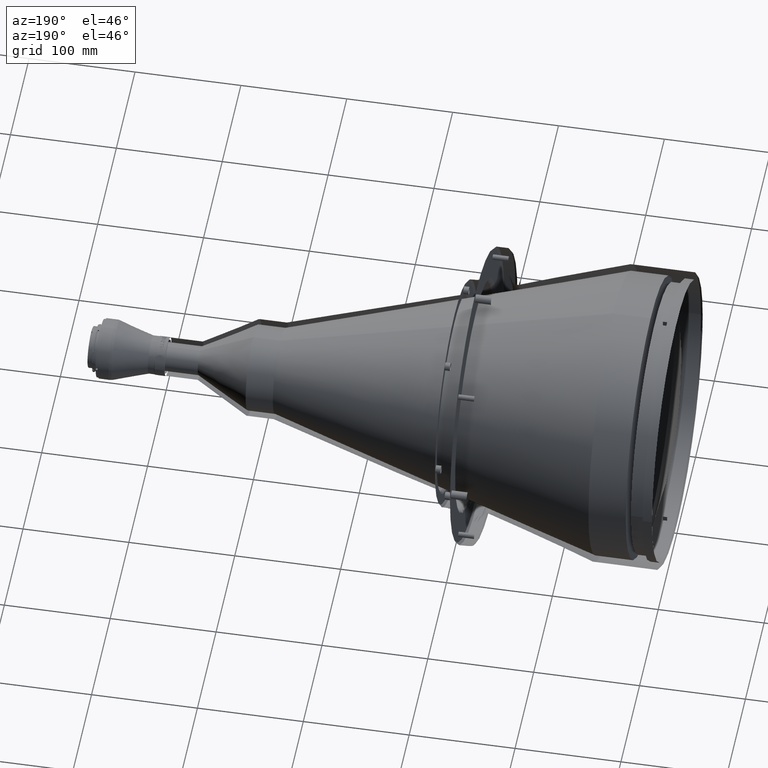
[diagram: clean part render]
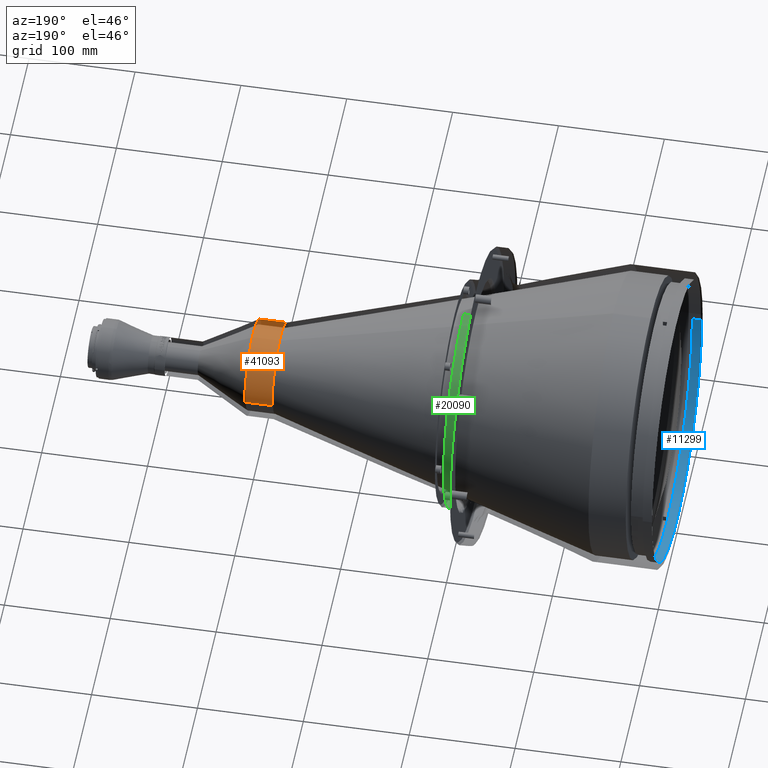
[diagram: same view with three faces highlighted in distinct colors, each labeled with its STEP entity id]
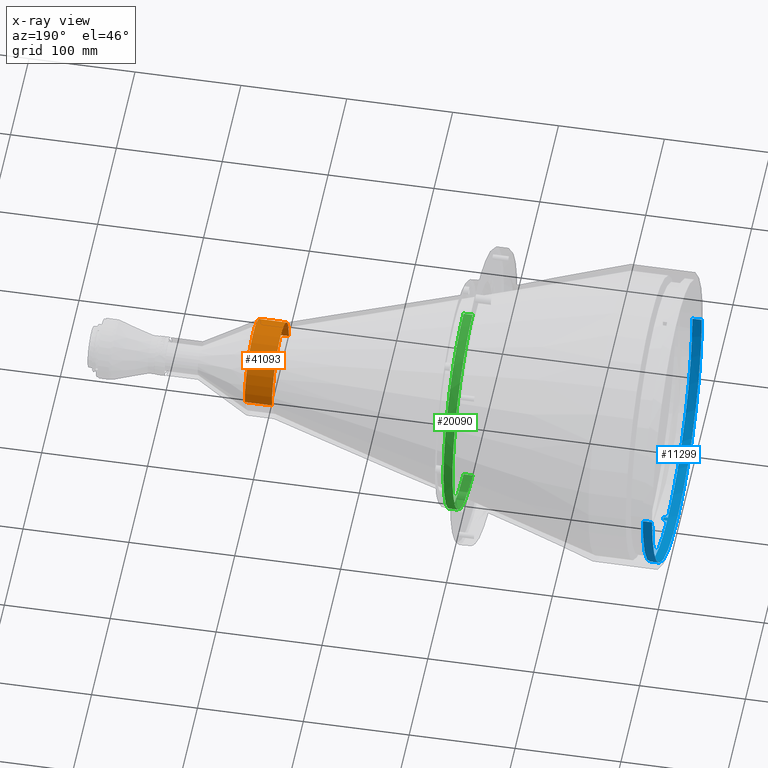
[diagram: x-ray of the same camera — body ghosted, the three highlighted faces saturated]
A machine part, auxiliary view with three faces highlighted in distinct colors.
The next image is the same camera in x-ray (body ghosted, the three faces saturated) — at least one of them is partly hidden behind the body in this view.
Their STEP definitions:

[orange] entity #41093 — the highlighted cylindrical surface (partial cylindrical patch) has radius 45.5 mm, axis along (1, 0, 0).
#165 = ORIENTED_EDGE ( 'NONE', *, *, #25155, .F. ) ;
#765 = CARTESIAN_POINT ( 'NONE',  ( 400.1999999890540494, -45.50000000602031491, 2.768180388105965672 ) ) ;
#777 = CARTESIAN_POINT ( 'NONE',  ( 374.5000000252640007, 42.92781545998033010, 15.33347587772701637 ) ) ;
#1323 = CARTESIAN_POINT ( 'NONE',  ( 374.5000000252640575, 8.770657782889619725, 44.73240866211475009 ) ) ;
#1851 = VERTEX_POINT ( 'NONE', #22315 ) ;
#1867 = CARTESIAN_POINT ( 'NONE',  ( 400.1999999889765149, 6.027860504608212544, 45.18382145137578476 ) ) ;
#2676 = CARTESIAN_POINT ( 'NONE',  ( 400.1999999889394530, 36.36826625420102488, 27.48203109084616713 ) ) ;
#2711 = VECTOR ( 'NONE', #12814, 1000.000000000000000 ) ;
#3556 = CARTESIAN_POINT ( 'NONE',  ( 374.5000000252641144, -45.24668051948123093, 5.536309657801396611 ) ) ;
#4039 = EDGE_CURVE ( 'NONE', #23309, #14631, #31465, .T. ) ;
#4384 = CARTESIAN_POINT ( 'NONE',  ( 374.5000000252641144, -25.64253252426647833, 37.68784085618300850 ) ) ;
#4656 = CARTESIAN_POINT ( 'NONE',  ( 400.1999999890453523, -44.24179937639248550, 10.98071086717121858 ) ) ;
#4936 = FACE_OUTER_BOUND ( 'NONE', #42345, .T. ) ;
#4940 = CARTESIAN_POINT ( 'NONE',  ( 374.5000000252640575, 16.74416422598858389, 42.39747382842657686 ) ) ;
#5222 = CARTESIAN_POINT ( 'NONE',  ( 374.5000000252640575, 24.16142581298923986, 38.65408549354648216 ) ) ;
#5392 = CARTESIAN_POINT ( 'NONE',  ( 374.5000000252640007, 45.12705905806026152, 6.713070853055089771 ) ) ;
#5545 = ORIENTED_EDGE ( 'NONE', *, *, #4039, .T. ) ;
#5755 = CARTESIAN_POINT ( 'NONE',  ( 400.1999999889823698, 0.5057881394849146339, 45.58132294669047013 ) ) ;
#5941 = VERTEX_POINT ( 'NONE', #45672 ) ;
#6031 = CARTESIAN_POINT ( 'NONE',  ( 400.1999999889737865, 8.770657784050474248, 44.73240866807913108 ) ) ;
#6108 = ORIENTED_EDGE ( 'NONE', *, *, #6875, .T. ) ;
#6849 = CARTESIAN_POINT ( 'NONE',  ( 400.1999999889937385, -10.49910809998909222, 44.35855669785371447 ) ) ;
#6875 = EDGE_CURVE ( 'NONE', #14631, #27368, #13215, .T. ) ;
#9694 = CARTESIAN_POINT ( 'NONE',  ( 374.5000000252640575, 14.12885911669510541, 43.33922199024314637 ) ) ;
#9975 = CARTESIAN_POINT ( 'NONE',  ( 374.5000000252640575, -2.273384974381213119, 45.52740431231799789 ) ) ;
#9995 = CARTESIAN_POINT ( 'NONE',  ( 400.1999999890144295, 45.12705906405366818, 6.713070853952771699 ) ) ;
#10240 = CARTESIAN_POINT ( 'NONE',  ( 374.5000000252641712, -18.37604851888064417, 41.71610796192253900 ) ) ;
#10496 = CARTESIAN_POINT ( 'NONE',  ( 400.1999999890024355, -18.37604852132858113, 41.71610796746631422 ) ) ;
#10970 = CARTESIAN_POINT ( 'NONE',  ( 387.3500000000000227, 45.49999999999881339, -7.662641651213079599E-14 ) ) ;
#11306 = CARTESIAN_POINT ( 'NONE',  ( 400.1999999889908963, -7.775883899457439519, 44.91601554895829196 ) ) ;
#12479 = CARTESIAN_POINT ( 'NONE',  ( 374.5000000252680366, -45.49999999636539627, 4.112648967899065080E-15 ) ) ;
#12755 = CARTESIAN_POINT ( 'NONE',  ( 374.5000000252641144, -35.74948372605202707, 28.28227777212780936 ) ) ;
#12814 = DIRECTION ( 'NONE',  ( 1.000000000000000000, 0.000000000000000000, 0.000000000000000000 ) ) ;
#13023 = EDGE_CURVE ( 'NONE', #5941, #1851, #15320, .T. ) ;
#13215 = B_SPLINE_CURVE_WITH_KNOTS ( 'NONE', 3,
 ( #22378, #5392, #39341, #18193 ),
 .UNSPECIFIED., .F., .F.,
 ( 4, 4 ),
 ( 0.000000000000000000, 1.000000000000000000 ),
 .UNSPECIFIED. ) ;
#13296 = CARTESIAN_POINT ( 'NONE',  ( 387.3500000000000227, -5.861977570020829563E-13, -3.552713678800519231E-14 ) ) ;
#13852 = CARTESIAN_POINT ( 'NONE',  ( 400.1999999890109621, -25.64253252767650793, 37.68784086118691334 ) ) ;
#14134 = CARTESIAN_POINT ( 'NONE',  ( 374.5000000252640575, -15.79923934537011831, 42.75858812878109205 ) ) ;
#14631 = VERTEX_POINT ( 'NONE', #36440 ) ;
#14926 = CARTESIAN_POINT ( 'NONE',  ( 400.1999999889251285, 42.92781546572345519, 15.33347587979341498 ) ) ;
#15320 = B_SPLINE_CURVE_WITH_KNOTS ( 'NONE', 3,
 ( #48378, #9995, #26951, #39732 ),
 .UNSPECIFIED., .F., .F.,
 ( 4, 4 ),
 ( 0.000000000000000000, 1.000000000000000000 ),
 .UNSPECIFIED. ) ;
#15471 = CARTESIAN_POINT ( 'NONE',  ( 400.1999999890082904, -23.29774055381970399, 39.18071092129579824 ) ) ;
#16635 = CARTESIAN_POINT ( 'NONE',  ( 374.5000000252640007, -41.51387633556240786, 18.82845968885110111 ) ) ;
#17330 = ORIENTED_EDGE ( 'NONE', *, *, #20755, .T. ) ;
#17461 = CARTESIAN_POINT ( 'NONE',  ( 400.1999999890367690, -41.51387634106474422, 18.82845969134458741 ) ) ;
#17824 = CARTESIAN_POINT ( 'NONE',  ( 374.5000000252680366, -45.49999999636539627, 4.112648967899065080E-15 ) ) ;
#18066 = VECTOR ( 'NONE', #44644, 1000.000000000000000 ) ;
#18193 = CARTESIAN_POINT ( 'NONE',  ( 374.5000000253049848, 45.49999999770999892, -6.388107833258559711E-14 ) ) ;
#19126 = ORIENTED_EDGE ( 'NONE', *, *, #44517, .F. ) ;
#20755 = EDGE_CURVE ( 'NONE', #27368, #1851, #33667, .T. ) ;
#21372 = CARTESIAN_POINT ( 'NONE',  ( 374.5000000252640007, -23.29774055071989380, 39.18071091609211010 ) ) ;
#21638 = CARTESIAN_POINT ( 'NONE',  ( 400.1999999890424533, -43.49025626416808876, 13.65688226816456030 ) ) ;
#21648 = CARTESIAN_POINT ( 'NONE',  ( 374.5000000252640575, 0.5057881394250450802, 45.58132294061929457 ) ) ;
#21915 = DIRECTION ( 'NONE',  ( 1.000000000000000000, 0.000000000000000000, 0.000000000000000000 ) ) ;
#22315 = CARTESIAN_POINT ( 'NONE',  ( 400.1999999882374368, 45.50000000197839256, -3.264780185757434716E-14 ) ) ;
#22378 = CARTESIAN_POINT ( 'NONE',  ( 374.5000000253819508, 44.39024389797739900, 9.987804877029621053 ) ) ;
#22753 = CARTESIAN_POINT ( 'NONE',  ( 374.5000000252640575, 40.75233114707592108, 20.42450314543855328 ) ) ;
#23309 = VERTEX_POINT ( 'NONE', #17824 ) ;
#24991 = CARTESIAN_POINT ( 'NONE',  ( 374.5000000252640575, -43.49025625840722853, 13.65688226635693248 ) ) ;
#25155 = EDGE_CURVE ( 'NONE', #23309, #40024, #27422, .T. ) ;
#25822 = CARTESIAN_POINT ( 'NONE',  ( 400.1999999884124009, -45.50000000300936875, -2.475475193136962644E-14 ) ) ;
#26105 = CARTESIAN_POINT ( 'NONE',  ( 374.5000000252641144, 30.77603946587455042, 33.62659984973069527 ) ) ;
#26334 = ORIENTED_EDGE ( 'NONE', *, *, #13023, .F. ) ;
#26376 = CARTESIAN_POINT ( 'NONE',  ( 400.1999999890195454, -32.05716590574788682, 32.40757530735709935 ) ) ;
#26661 = CARTESIAN_POINT ( 'NONE',  ( 374.5000000252639438, 39.43166609608137207, 22.87042919461969959 ) ) ;
#26951 = CARTESIAN_POINT ( 'NONE',  ( 400.1999999891095285, 45.50000000598972605, 3.356602376046171177 ) ) ;
#27197 = CARTESIAN_POINT ( 'NONE',  ( 400.1999999889592914, 21.76049389321947203, 40.05488395610253605 ) ) ;
#27208 = CARTESIAN_POINT ( 'NONE',  ( 374.5000000252640575, 6.027860503812973114, 45.18382144535338085 ) ) ;
#27368 = VERTEX_POINT ( 'NONE', #39973 ) ;
#27422 = LINE ( 'NONE', #41751, #18066 ) ;
#28004 = CARTESIAN_POINT ( 'NONE',  ( 400.1999999889481501, 30.77603946997831841, 33.62659985423145059 ) ) ;
#29450 = CARTESIAN_POINT ( 'NONE',  ( 374.5000000252640007, -40.28907602100392893, 21.32377021149927998 ) ) ;
#29725 = CARTESIAN_POINT ( 'NONE',  ( 374.5000000252641144, -32.05716590149026501, 32.40757530305804579 ) ) ;
#30273 = CARTESIAN_POINT ( 'NONE',  ( 400.1999999890253434, -35.74948373079655539, 28.28227777587747482 ) ) ;
#31465 = B_SPLINE_CURVE_WITH_KNOTS ( 'NONE', 3,
 ( #12479, #50881, #3556, #54763, #24991, #16635, #29450, #46421, #12755, #29725, #46699, #4384, #21372, #10240, #14134, #43336, #34997, #9975, #21648, #27208, #1323, #9694, #4940, #38886, #5222, #51711, #26105, #39176, #43888, #26661, #22753, #777, #44153, #52262 ),
 .UNSPECIFIED., .F., .F.,
 ( 4, 2, 2, 2, 2, 2, 2, 2, 2, 2, 2, 2, 2, 2, 2, 2, 4 ),
 ( 0.000000000000000000, 0.06250000000000001388, 0.1250000000000000000, 0.1874999999999999722, 0.2499999999999999722, 0.3124999999999999445, 0.3749999999999999445, 0.4375000000000000000, 0.5000000000000000000, 0.5625000000000000000, 0.6250000000000000000, 0.6875000000000000000, 0.7500000000000000000, 0.8125000000000001110, 0.8750000000000001110, 0.9375000000000001110, 1.000000000000000000 ),
 .UNSPECIFIED. ) ;
#31623 = CARTESIAN_POINT ( 'NONE',  ( 400.1999999889651463, 16.74416422821360584, 42.39747383408602843 ) ) ;
#32172 = CARTESIAN_POINT ( 'NONE',  ( 400.1999999889681021, 14.12885911857084764, 43.33922199602607606 ) ) ;
#32583 = B_SPLINE_CURVE_WITH_KNOTS ( 'NONE', 3,
 ( #25822, #765, #42778, #4656, #21638, #17461, #34426, #51422, #30273, #26376, #51967, #13852, #15471, #10496, #36332, #6849, #11306, #43878, #5755, #1867, #6031, #32172, #31623, #27197, #53050, #44144, #28004, #36071, #2676, #53324, #49158, #14926, #49426, #44416 ),
 .UNSPECIFIED., .F., .F.,
 ( 4, 2, 2, 2, 2, 2, 2, 2, 2, 2, 2, 2, 2, 2, 2, 2, 4 ),
 ( 0.5182546318853273881, 0.5483637173924944541, 0.5784728028996614091, 0.6085818884068284751, 0.6386909739139955411, 0.6688000594211624961, 0.6989091449283295621, 0.7290182304354966281, 0.7591273159426636941, 0.7892364014498307601, 0.8193454869569977150, 0.8494545724641647810, 0.8795636579713317360, 0.9096727434784988020, 0.9397818289856658680, 0.9698909144928329340, 1.000000000000000000 ),
 .UNSPECIFIED. ) ;
#33324 = CYLINDRICAL_SURFACE ( 'NONE', #46786, 45.49999999999939604 ) ;
#33667 = LINE ( 'NONE', #10970, #2711 ) ;
#34426 = CARTESIAN_POINT ( 'NONE',  ( 400.1999999890338131, -40.28907602634559737, 21.32377021432403907 ) ) ;
#34997 = CARTESIAN_POINT ( 'NONE',  ( 374.5000000252640575, -7.775883898416093842, 44.91601554298168253 ) ) ;
#36071 = CARTESIAN_POINT ( 'NONE',  ( 400.1999999889422384, 34.62558802747508224, 29.64762177588823278 ) ) ;
#36332 = CARTESIAN_POINT ( 'NONE',  ( 400.1999999889995934, -15.79923934747641567, 42.75858813446517814 ) ) ;
#36440 = CARTESIAN_POINT ( 'NONE',  ( 374.5000000253819508, 44.39024389797739900, 9.987804877029621053 ) ) ;
#38886 = CARTESIAN_POINT ( 'NONE',  ( 374.5000000252640575, 21.76049389032380788, 40.05488395075144581 ) ) ;
#39176 = CARTESIAN_POINT ( 'NONE',  ( 374.5000000252640007, 34.62558802285399651, 29.64762177191556702 ) ) ;
#39341 = CARTESIAN_POINT ( 'NONE',  ( 374.5000000252640007, 45.49999999999880629, 3.356602375603122468 ) ) ;
#39357 = CARTESIAN_POINT ( 'NONE',  ( 400.1999999884124009, -45.50000000300936875, -2.475475193136962644E-14 ) ) ;
#39732 = CARTESIAN_POINT ( 'NONE',  ( 400.1999999882374368, 45.50000000197839256, -3.264780185757434716E-14 ) ) ;
#39973 = CARTESIAN_POINT ( 'NONE',  ( 374.5000000253049848, 45.49999999770999892, -6.388107833258559711E-14 ) ) ;
#40024 = VERTEX_POINT ( 'NONE', #39357 ) ;
#41093 = ADVANCED_FACE ( 'NONE', ( #4936 ), #33324, .F. ) ;
#41751 = CARTESIAN_POINT ( 'NONE',  ( 387.3500000000000227, -45.49999999999997868, 1.232595164407830946E-29 ) ) ;
#41943 = DIRECTION ( 'NONE',  ( 0.000000000000000000, -1.000000000000000000, 7.808161931429819168E-16 ) ) ;
#42345 = EDGE_LOOP ( 'NONE', ( #6108, #17330, #26334, #19126, #165, #5545 ) ) ;
#42778 = CARTESIAN_POINT ( 'NONE',  ( 400.1999999890511504, -45.24668052546967090, 5.536309658533648204 ) ) ;
#43336 = CARTESIAN_POINT ( 'NONE',  ( 374.5000000252642280, -10.49910809858608296, 44.35855669195321838 ) ) ;
#43878 = CARTESIAN_POINT ( 'NONE',  ( 400.1999999889851551, -2.273384974691113225, 45.52740431837992219 ) ) ;
#43888 = CARTESIAN_POINT ( 'NONE',  ( 374.5000000252640575, 36.36826624934533214, 27.48203108716128540 ) ) ;
#44144 = CARTESIAN_POINT ( 'NONE',  ( 400.1999999889510491, 28.66924022561025609, 35.43991377106280538 ) ) ;
#44153 = CARTESIAN_POINT ( 'NONE',  ( 374.5000000252639438, 43.78259454903567871, 12.68846867095132325 ) ) ;
#44416 = CARTESIAN_POINT ( 'NONE',  ( 400.1999999882019665, 44.39024390658385499, 9.987804878981270562 ) ) ;
#44517 = EDGE_CURVE ( 'NONE', #40024, #5941, #32583, .T. ) ;
#44644 = DIRECTION ( 'NONE',  ( 1.000000000000000000, 0.000000000000000000, 0.000000000000000000 ) ) ;
#45672 = CARTESIAN_POINT ( 'NONE',  ( 400.1999999882019665, 44.39024390658385499, 9.987804878981270562 ) ) ;
#46421 = CARTESIAN_POINT ( 'NONE',  ( 374.5000000252641144, -37.40685310444531098, 26.05072289748417802 ) ) ;
#46699 = CARTESIAN_POINT ( 'NONE',  ( 374.5000000252640007, -30.02228563827569729, 34.30124178091559628 ) ) ;
#46786 = AXIS2_PLACEMENT_3D ( 'NONE', #13296, #21915, #41943 ) ;
#48378 = CARTESIAN_POINT ( 'NONE',  ( 400.1999999882019665, 44.39024390658385499, 9.987804878981270562 ) ) ;
#49158 = CARTESIAN_POINT ( 'NONE',  ( 400.1999999889309265, 40.75233115252365224, 20.42450314818392343 ) ) ;
#49426 = CARTESIAN_POINT ( 'NONE',  ( 400.1999999889224000, 43.78259455489548913, 12.68846867266464606 ) ) ;
#50881 = CARTESIAN_POINT ( 'NONE',  ( 374.5000000252640007, -45.49999999999997868, 2.768180387739902493 ) ) ;
#51422 = CARTESIAN_POINT ( 'NONE',  ( 400.1999999890281856, -37.40685310940804698, 26.05072290093702136 ) ) ;
#51711 = CARTESIAN_POINT ( 'NONE',  ( 374.5000000252640575, 28.66924022178922726, 35.43991376632173740 ) ) ;
#51967 = CARTESIAN_POINT ( 'NONE',  ( 400.1999999890166464, -30.02228564226465934, 34.30124178546719094 ) ) ;
#52262 = CARTESIAN_POINT ( 'NONE',  ( 374.5000000253819508, 44.39024389797739900, 9.987804877029621053 ) ) ;
#53050 = CARTESIAN_POINT ( 'NONE',  ( 400.1999999889566197, 24.16142581620619012, 38.65408549871273181 ) ) ;
#53324 = CARTESIAN_POINT ( 'NONE',  ( 400.1999999889336550, 39.43166610135038042, 22.87042919769093174 ) ) ;
#54763 = CARTESIAN_POINT ( 'NONE',  ( 374.5000000252640007, -44.24179937053378353, 10.98071086571817112 ) ) ;

[blue] entity #11299 — the highlighted cylindrical surface (partial cylindrical patch) has radius 132.9 mm, axis along (1, 0, 0).
#205 = CARTESIAN_POINT ( 'NONE',  ( -0.000000000000000000, -128.4407857921244158, -34.41397399465732576 ) ) ;
#480 = CARTESIAN_POINT ( 'NONE',  ( 0.000000000000000000, -108.0843036058042230, -77.45405605940683813 ) ) ;
#1042 = CARTESIAN_POINT ( 'NONE',  ( -0.000000000000000000, -112.9203193441570079, -70.21651187728615184 ) ) ;
#1314 = CARTESIAN_POINT ( 'NONE',  ( 0.000000000000000000, -129.4972599107605333, -30.19614481316151711 ) ) ;
#2108 = B_SPLINE_CURVE_WITH_KNOTS ( 'NONE', 3,
 ( #11908, #24981, #54470, #46412, #8286, #28602, #21079, #25251, #41652, #3270, #41936, #20255, #4094, #3818, #33885, #38040, #16908, #37760, #42485, #16342, #50029, #8565, #54749, #36937, #15801, #32768, #11643, #37211, #45570, #16625, #7449, #45846, #24417, #16081, #28872, #33317, #33592, #50581, #9965, #39429, #5487, #4375, #9405, #34712, #22469, #43050, #14126, #35265, #5212, #46964, #17741, #8844, #480, #1042, #51698, #21361, #26923, #38331, #13578, #205, #1314, #4932, #22193, #51149, #17190, #26096 ),
 .UNSPECIFIED., .F., .F.,
 ( 4, 2, 2, 2, 2, 2, 2, 2, 2, 2, 2, 2, 2, 2, 2, 2, 2, 2, 2, 2, 2, 2, 2, 2, 2, 2, 2, 2, 2, 2, 2, 2, 4 ),
 ( 0.5000000000000000000, 0.5156250000000000000, 0.5312500000000000000, 0.5468750000000000000, 0.5625000000000000000, 0.5781250000000000000, 0.5937500000000000000, 0.6093750000000000000, 0.6250000000000000000, 0.6406250000000000000, 0.6562500000000000000, 0.6718750000000000000, 0.6875000000000000000, 0.7031250000000000000, 0.7187500000000000000, 0.7343750000000000000, 0.7500000000000000000, 0.7656250000000000000, 0.7812500000000000000, 0.7968750000000000000, 0.8125000000000000000, 0.8281250000000000000, 0.8437500000000000000, 0.8593750000000000000, 0.8750000000000000000, 0.8906250000000000000, 0.9062500000000000000, 0.9218750000000000000, 0.9375000000000000000, 0.9531250000000000000, 0.9687500000000000000, 0.9843750000000000000, 1.000000000000000000 ),
 .UNSPECIFIED. ) ;
#3270 = CARTESIAN_POINT ( 'NONE',  ( -0.000000000000000000, 121.1180497700383398, -54.87964044958533805 ) ) ;
#3746 = B_SPLINE_CURVE_WITH_KNOTS ( 'NONE', 3,
 ( #22371, #40153, #22087, #22642 ),
 .UNSPECIFIED., .F., .F.,
 ( 4, 4 ),
 ( 0.000000000000000000, 1.000000000000000000 ),
 .UNSPECIFIED. ) ;
#3818 = CARTESIAN_POINT ( 'NONE',  ( -0.000000000000000000, 108.0843136771519966, -77.45410287965366081 ) ) ;
#4094 = CARTESIAN_POINT ( 'NONE',  ( 0.000000000000000000, 112.9203092729199938, -70.21646505687435535 ) ) ;
#4355 = CARTESIAN_POINT ( 'NONE',  ( 11.50282277828946498, -1.999999999983595123, -132.8849502389188615 ) ) ;
#4375 = CARTESIAN_POINT ( 'NONE',  ( -0.000000000000000000, -54.87961028275992703, -121.1180640374938520 ) ) ;
#4932 = CARTESIAN_POINT ( 'NONE',  ( -0.000000000000000000, -131.1954676203986594, -21.65886277882350797 ) ) ;
#5089 = CARTESIAN_POINT ( 'NONE',  ( 8.836156110278034603, -132.9000000000000057, -8.614948180564132585 ) ) ;
#5212 = CARTESIAN_POINT ( 'NONE',  ( 0.000000000000000000, -90.89695728064278057, -97.05199968645221986 ) ) ;
#5368 = CARTESIAN_POINT ( 'NONE',  ( 8.836156105587644305, -81.98911147529348398, -104.9495732799595373 ) ) ;
#5487 = CARTESIAN_POINT ( 'NONE',  ( 0.000000000000000000, -46.83764603978926999, -124.4491157040451554 ) ) ;
#5912 = CARTESIAN_POINT ( 'NONE',  ( 8.836156107752444200, -115.6629505439514816, -66.02052107959445948 ) ) ;
#6218 = CARTESIAN_POINT ( 'NONE',  ( 8.836156109394000424, 1.999999999970874853, -132.8849502392509692 ) ) ;
#6543 = EDGE_CURVE ( 'NONE', #50694, #16216, #12721, .T. ) ;
#7047 = VERTEX_POINT ( 'NONE', #14298 ) ;
#7449 = CARTESIAN_POINT ( 'NONE',  ( 0.000000000000000000, 17.35779102699665444, -131.8334349726115136 ) ) ;
#8286 = CARTESIAN_POINT ( 'NONE',  ( 0.000000000000000000, 131.1954403983689872, -21.65882337635200727 ) ) ;
#8551 = CARTESIAN_POINT ( 'NONE',  ( 8.836156106079540606, 128.7301123782984575, -34.13481359586734243 ) ) ;
#8565 = CARTESIAN_POINT ( 'NONE',  ( -0.000000000000000000, 70.21651187734080679, -112.9203193441026798 ) ) ;
#8844 = CARTESIAN_POINT ( 'NONE',  ( -0.000000000000000000, -105.4941554443851146, -80.94652696731969854 ) ) ;
#9140 = CYLINDRICAL_SURFACE ( 'NONE', #16952, 132.8999999999999773 ) ;
#9405 = CARTESIAN_POINT ( 'NONE',  ( 0.000000000000000000, -58.81025641100195855, -119.2589670712533945 ) ) ;
#9700 = DIRECTION ( 'NONE',  ( 0.000000000000000000, 1.000000000000000000, -3.608851366727370312E-15 ) ) ;
#9880 = CARTESIAN_POINT ( 'NONE',  ( 8.836156109949762083, 132.8999999999999773, 2.757665262809183870E-10 ) ) ;
#9965 = CARTESIAN_POINT ( 'NONE',  ( 0.000000000000000000, -34.41396353490189597, -128.4407513207275713 ) ) ;
#10146 = CARTESIAN_POINT ( 'NONE',  ( 8.836156102799616718, 36.06819586819657530, -128.2018431184485507 ) ) ;
#10160 = B_SPLINE_CURVE_WITH_KNOTS ( 'NONE', 3,
 ( #16790, #33760, #41822, #20687, #14546, #51855, #30978, #5368, #14280, #52408, #13464, #5912, #48234, #47687, #43210, #14006, #5089, #44031 ),
 .UNSPECIFIED., .F., .F.,
 ( 4, 2, 2, 2, 2, 2, 2, 2, 4 ),
 ( 0.000000000000000000, 0.1250000000000000555, 0.2500000000000000555, 0.3750000000000000555, 0.5000000000000000000, 0.6250000000000000000, 0.7500000000000001110, 0.8750000000000000000, 1.000000000000000000 ),
 .UNSPECIFIED. ) ;
#10743 = VECTOR ( 'NONE', #24395, 1000.000000000000000 ) ;
#11299 = ADVANCED_FACE ( 'NONE', ( #34173 ), #9140, .T. ) ;
#11643 = CARTESIAN_POINT ( 'NONE',  ( 0.000000000000000000, 42.74369321880987371, -125.9139554456454846 ) ) ;
#11908 = CARTESIAN_POINT ( 'NONE',  ( -1.697925220561780080E-09, 132.8999999999999488, 5.000553336126151999E-11 ) ) ;
#12721 = LINE ( 'NONE', #29125, #10743 ) ;
#12733 = CARTESIAN_POINT ( 'NONE',  ( 8.836156104849571591, 106.1715353337880572, -80.40045035334136969 ) ) ;
#13143 = ORIENTED_EDGE ( 'NONE', *, *, #46324, .T. ) ;
#13464 = CARTESIAN_POINT ( 'NONE',  ( 8.836156107030845419, -106.1715353336902581, -80.40045035346938107 ) ) ;
#13578 = CARTESIAN_POINT ( 'NONE',  ( 0.000000000000000000, -125.9139554454676073, -42.74369321967464685 ) ) ;
#13762 = ORIENTED_EDGE ( 'NONE', *, *, #27632, .T. ) ;
#14006 = CARTESIAN_POINT ( 'NONE',  ( 8.836156109917238766, -132.0597026617961944, -17.22969137946966711 ) ) ;
#14126 = CARTESIAN_POINT ( 'NONE',  ( 0.000000000000000000, -80.94650411467932827, -105.4941275977285073 ) ) ;
#14212 = CARTESIAN_POINT ( 'NONE',  ( 8.836156109394000424, 1.999999999970874853, -132.8849502392509692 ) ) ;
#14280 = CARTESIAN_POINT ( 'NONE',  ( 8.836156105948445472, -88.63327964624380684, -99.40205768144062404 ) ) ;
#14298 = CARTESIAN_POINT ( 'NONE',  ( -1.697925220561780080E-09, 132.8999999999999488, 5.000553336126151999E-11 ) ) ;
#14308 = CARTESIAN_POINT ( 'NONE',  ( 8.836156105874549027, 126.2408986562919893, -42.42479037786484497 ) ) ;
#14546 = CARTESIAN_POINT ( 'NONE',  ( 8.836156103783647353, -44.31977393219790429, -125.5881561722782322 ) ) ;
#15575 = CARTESIAN_POINT ( 'NONE',  ( 8.836156111425889748, -132.8999999999999773, 3.355684008828114756E-13 ) ) ;
#15801 = CARTESIAN_POINT ( 'NONE',  ( 0.000000000000000000, 54.87959649419052255, -121.1180307577402431 ) ) ;
#16081 = CARTESIAN_POINT ( 'NONE',  ( -0.000000000000000000, -4.352272221947830033, -132.9000180116928789 ) ) ;
#16216 = VERTEX_POINT ( 'NONE', #15575 ) ;
#16318 = ORIENTED_EDGE ( 'NONE', *, *, #29067, .T. ) ;
#16342 = CARTESIAN_POINT ( 'NONE',  ( -0.000000000000000000, 80.94652696683988324, -105.4941554447241714 ) ) ;
#16625 = CARTESIAN_POINT ( 'NONE',  ( -0.000000000000000000, 21.65886277775027580, -131.1954676206180181 ) ) ;
#16790 = CARTESIAN_POINT ( 'NONE',  ( 8.836156109394011082, -1.999999999970874853, -132.8849502392511965 ) ) ;
#16908 = CARTESIAN_POINT ( 'NONE',  ( 0.000000000000000000, 97.05201259905149413, -90.89694668340251837 ) ) ;
#16952 = AXIS2_PLACEMENT_3D ( 'NONE', #39446, #38346, #9700 ) ;
#17190 = CARTESIAN_POINT ( 'NONE',  ( -0.000000000000000000, -132.8999999999999488, -4.352822658412112133 ) ) ;
#17443 = CARTESIAN_POINT ( 'NONE',  ( 8.836156109394011082, -1.999999999970874853, -132.8849502392511965 ) ) ;
#17627 = ORIENTED_EDGE ( 'NONE', *, *, #31501, .T. ) ;
#17741 = CARTESIAN_POINT ( 'NONE',  ( 0.000000000000000000, -99.97202305936723121, -87.67520796345435485 ) ) ;
#18215 = CARTESIAN_POINT ( 'NONE',  ( 12.83615611469809892, 0.6667673287580810904, -132.9050162082917268 ) ) ;
#19830 = VERTEX_POINT ( 'NONE', #35531 ) ;
#20255 = CARTESIAN_POINT ( 'NONE',  ( -0.000000000000000000, 115.1556878355914932, -66.48702486256416933 ) ) ;
#20687 = CARTESIAN_POINT ( 'NONE',  ( 8.836156103422853292, -36.06819586815223744, -128.2018431184602036 ) ) ;
#21079 = CARTESIAN_POINT ( 'NONE',  ( 0.000000000000000000, 128.4407625625956939, -34.41393211539530483 ) ) ;
#21348 = CARTESIAN_POINT ( 'NONE',  ( 8.836156106489536199, 132.0597026618296752, -17.22969137921865013 ) ) ;
#21361 = CARTESIAN_POINT ( 'NONE',  ( -0.000000000000000000, -119.2589988401419561, -58.81027339373068230 ) ) ;
#21542 = CARTESIAN_POINT ( 'NONE',  ( 12.83615611347906160, -1.999999999786819860, -132.8849502392549766 ) ) ;
#22087 = CARTESIAN_POINT ( 'NONE',  ( 11.50282277828946143, 1.999999999983535393, -132.8849502389188615 ) ) ;
#22193 = CARTESIAN_POINT ( 'NONE',  ( 0.000000000000000000, -131.8334169578833723, -17.35797392468534284 ) ) ;
#22371 = CARTESIAN_POINT ( 'NONE',  ( 8.836156109394000424, 1.999999999970874853, -132.8849502392509692 ) ) ;
#22385 = CARTESIAN_POINT ( 'NONE',  ( 8.836156105259561855, 115.6629505440433547, -66.02052107943495685 ) ) ;
#22469 = CARTESIAN_POINT ( 'NONE',  ( 0.000000000000000000, -70.21649186372862061, -112.9202893919646726 ) ) ;
#22642 = CARTESIAN_POINT ( 'NONE',  ( 12.83615611347906160, 1.999999999786799876, -132.8849502392547777 ) ) ;
#23646 = VERTEX_POINT ( 'NONE', #48835 ) ;
#24333 = ORIENTED_EDGE ( 'NONE', *, *, #6543, .F. ) ;
#24395 = DIRECTION ( 'NONE',  ( 1.000000000000000000, 0.000000000000000000, 0.000000000000000000 ) ) ;
#24417 = CARTESIAN_POINT ( 'NONE',  ( 0.000000000000000000, 4.352272222047130157, -132.8999819883081273 ) ) ;
#24981 = CARTESIAN_POINT ( 'NONE',  ( -0.000000000000000000, 132.9000163742994971, -4.352305556042194823 ) ) ;
#25251 = CARTESIAN_POINT ( 'NONE',  ( -0.000000000000000000, 125.9139786750542953, -42.74373509874667576 ) ) ;
#26096 = CARTESIAN_POINT ( 'NONE',  ( -1.697925220561780080E-09, -132.9000000000000057, -4.988450779255696847E-11 ) ) ;
#26836 = CARTESIAN_POINT ( 'NONE',  ( 8.836156103414600338, 60.16268750201805915, -118.8153119959224853 ) ) ;
#26923 = CARTESIAN_POINT ( 'NONE',  ( 0.000000000000000000, -121.1180307576038189, -54.87959649435781273 ) ) ;
#27109 = CARTESIAN_POINT ( 'NONE',  ( 8.836156102389622902, 19.21509470962287125, -131.7854600001613221 ) ) ;
#27416 = CARTESIAN_POINT ( 'NONE',  ( 6.418719864305649558, 132.8999999999999488, 4.930380657631323784E-28 ) ) ;
#27632 = EDGE_CURVE ( 'NONE', #19830, #37740, #50796, .T. ) ;
#28602 = CARTESIAN_POINT ( 'NONE',  ( -0.000000000000000000, 129.4972871328290012, -30.19618421543802000 ) ) ;
#28872 = CARTESIAN_POINT ( 'NONE',  ( 0.000000000000000000, -8.695161341060902771, -132.6866295270484102 ) ) ;
#29067 = EDGE_CURVE ( 'NONE', #32546, #51075, #30786, .T. ) ;
#29125 = CARTESIAN_POINT ( 'NONE',  ( 6.418719864305649558, -132.9000000000000057, 9.755082492368038576E-13 ) ) ;
#29699 = CARTESIAN_POINT ( 'NONE',  ( 8.836156104029587510, 81.98911147538449029, -104.9495732798893783 ) ) ;
#30483 = CARTESIAN_POINT ( 'NONE',  ( 12.83615611347906160, 1.999999999786799876, -132.8849502392547777 ) ) ;
#30786 = B_SPLINE_CURVE_WITH_KNOTS ( 'NONE', 3,
 ( #9880, #52438, #21348, #8551, #14308, #52163, #22385, #12733, #48264, #38319, #29699, #42469, #26836, #46673, #10146, #27109, #44060, #6218 ),
 .UNSPECIFIED., .F., .F.,
 ( 4, 2, 2, 2, 2, 2, 2, 2, 4 ),
 ( 0.5000000000000000000, 0.5625000000000000000, 0.6250000000000000000, 0.6875000000000000000, 0.7500000000000000000, 0.8125000000000000000, 0.8750000000000000000, 0.9375000000000000000, 1.000000000000000000 ),
 .UNSPECIFIED. ) ;
#30832 = ORIENTED_EDGE ( 'NONE', *, *, #42814, .T. ) ;
#30978 = CARTESIAN_POINT ( 'NONE',  ( 8.836156104866047301, -67.75364604581046990, -114.6563159169730568 ) ) ;
#31501 = EDGE_CURVE ( 'NONE', #37740, #23646, #50422, .T. ) ;
#32546 = VERTEX_POINT ( 'NONE', #48329 ) ;
#32768 = CARTESIAN_POINT ( 'NONE',  ( -0.000000000000000000, 46.83765982854225740, -124.4491489837228357 ) ) ;
#32850 = ORIENTED_EDGE ( 'NONE', *, *, #42415, .T. ) ;
#33317 = CARTESIAN_POINT ( 'NONE',  ( -0.000000000000000000, -17.35779455843738006, -131.8334708224317069 ) ) ;
#33592 = CARTESIAN_POINT ( 'NONE',  ( 0.000000000000000000, -21.65885574838818073, -131.1954322898359067 ) ) ;
#33760 = CARTESIAN_POINT ( 'NONE',  ( 8.836156102340456897, -10.61397261305155837, -132.7553046681113642 ) ) ;
#33885 = CARTESIAN_POINT ( 'NONE',  ( 0.000000000000000000, 105.4941500093786289, -80.94647938701453427 ) ) ;
#34173 = FACE_OUTER_BOUND ( 'NONE', #44781, .T. ) ;
#34712 = CARTESIAN_POINT ( 'NONE',  ( -0.000000000000000000, -66.48699623726064090, -115.1557049925867062 ) ) ;
#35195 = CARTESIAN_POINT ( 'NONE',  ( 12.83615611469809892, -0.6667673287577080554, -132.9050162082917268 ) ) ;
#35265 = CARTESIAN_POINT ( 'NONE',  ( -0.000000000000000000, -87.67523081594092105, -99.97205090615051404 ) ) ;
#35486 = LINE ( 'NONE', #27416, #38820 ) ;
#35531 = CARTESIAN_POINT ( 'NONE',  ( 12.83615611347906160, 1.999999999786799876, -132.8849502392547777 ) ) ;
#36937 = CARTESIAN_POINT ( 'NONE',  ( -0.000000000000000000, 58.81027339339195947, -119.2589988403488661 ) ) ;
#37086 = ORIENTED_EDGE ( 'NONE', *, *, #44439, .F. ) ;
#37211 = CARTESIAN_POINT ( 'NONE',  ( -0.000000000000000000, 34.41397399552153757, -128.4407857919475475 ) ) ;
#37740 = VERTEX_POINT ( 'NONE', #21542 ) ;
#37760 = CARTESIAN_POINT ( 'NONE',  ( -0.000000000000000000, 90.89696984040311634, -97.05203575591248466 ) ) ;
#38040 = CARTESIAN_POINT ( 'NONE',  ( -0.000000000000000000, 99.97202849449982409, -87.67525554360651086 ) ) ;
#38319 = CARTESIAN_POINT ( 'NONE',  ( 8.836156104234582642, 88.63327964633877798, -99.40205768135692210 ) ) ;
#38331 = CARTESIAN_POINT ( 'NONE',  ( -0.000000000000000000, -124.4491489838581799, -46.83765982837518749 ) ) ;
#38346 = DIRECTION ( 'NONE',  ( 1.000000000000000000, 0.000000000000000000, 0.000000000000000000 ) ) ;
#38820 = VECTOR ( 'NONE', #44364, 1000.000000000000000 ) ;
#39429 = CARTESIAN_POINT ( 'NONE',  ( -0.000000000000000000, -42.74370367923940961, -125.9139899169235122 ) ) ;
#39446 = CARTESIAN_POINT ( 'NONE',  ( 6.418719864305649558, -1.776356839400250149E-14, 4.796163466380679284E-13 ) ) ;
#40153 = CARTESIAN_POINT ( 'NONE',  ( 10.16948944299082669, 1.999999999983968157, -132.8849502389188331 ) ) ;
#41652 = CARTESIAN_POINT ( 'NONE',  ( 0.000000000000000000, 124.4491299714996586, -46.83761587296464768 ) ) ;
#41822 = CARTESIAN_POINT ( 'NONE',  ( 8.836156102701252735, -19.21509470960008770, -131.7854600001638516 ) ) ;
#41936 = CARTESIAN_POINT ( 'NONE',  ( 0.000000000000000000, 119.2589842282480816, -58.81022778569884935 ) ) ;
#42415 = EDGE_CURVE ( 'NONE', #7047, #32546, #35486, .T. ) ;
#42469 = CARTESIAN_POINT ( 'NONE',  ( 8.836156103619597246, 67.75364604588997963, -114.6563159169268715 ) ) ;
#42485 = CARTESIAN_POINT ( 'NONE',  ( 0.000000000000000000, 87.67520796393374383, -99.97202305902882813 ) ) ;
#42814 = EDGE_CURVE ( 'NONE', #23646, #16216, #10160, .T. ) ;
#43050 = CARTESIAN_POINT ( 'NONE',  ( -0.000000000000000000, -77.45407607279901185, -108.0843335581073603 ) ) ;
#43210 = CARTESIAN_POINT ( 'NONE',  ( 8.836156109195636432, -128.7301123782387151, -34.13481359608977073 ) ) ;
#44031 = CARTESIAN_POINT ( 'NONE',  ( 8.836156111425889748, -132.8999999999999773, 3.355684008828114756E-13 ) ) ;
#44060 = CARTESIAN_POINT ( 'NONE',  ( 8.836156102184629546, 10.61397261306289685, -132.7553046681112221 ) ) ;
#44364 = DIRECTION ( 'NONE',  ( 1.000000000000000000, 0.000000000000000000, 0.000000000000000000 ) ) ;
#44439 = EDGE_CURVE ( 'NONE', #7047, #50694, #2108, .T. ) ;
#44781 = EDGE_LOOP ( 'NONE', ( #24333, #37086, #32850, #16318, #13143, #13762, #17627, #30832 ) ) ;
#45570 = CARTESIAN_POINT ( 'NONE',  ( 0.000000000000000000, 30.19614481423413821, -129.4972599105421125 ) ) ;
#45846 = CARTESIAN_POINT ( 'NONE',  ( -0.000000000000000000, 8.695164872699340464, -132.6866653768495041 ) ) ;
#46114 = CARTESIAN_POINT ( 'NONE',  ( 10.16948944299083379, -1.999999999984460430, -132.8849502389188331 ) ) ;
#46324 = EDGE_CURVE ( 'NONE', #51075, #19830, #3746, .T. ) ;
#46412 = CARTESIAN_POINT ( 'NONE',  ( -0.000000000000000000, 131.8334659258581496, -17.35782757019049782 ) ) ;
#46673 = CARTESIAN_POINT ( 'NONE',  ( 8.836156103004611850, 44.31977393225228923, -125.5881561722598860 ) ) ;
#46964 = CARTESIAN_POINT ( 'NONE',  ( -0.000000000000000000, -97.05202515867142665, -90.89698275300283115 ) ) ;
#47462 = CARTESIAN_POINT ( 'NONE',  ( 12.83615611347906160, -1.999999999786819860, -132.8849502392549766 ) ) ;
#47687 = CARTESIAN_POINT ( 'NONE',  ( 8.836156108834842371, -126.2408986562216455, -42.42479037807190423 ) ) ;
#48234 = CARTESIAN_POINT ( 'NONE',  ( 8.836156108113238261, -119.7072400090581255, -58.36783379197401445 ) ) ;
#48264 = CARTESIAN_POINT ( 'NONE',  ( 8.836156104644574683, 100.7246354247031235, -87.12735018761075878 ) ) ;
#48329 = CARTESIAN_POINT ( 'NONE',  ( 8.836156109949762083, 132.8999999999999773, 2.757665262809183870E-10 ) ) ;
#48835 = CARTESIAN_POINT ( 'NONE',  ( 8.836156109394011082, -1.999999999970874853, -132.8849502392511965 ) ) ;
#50029 = CARTESIAN_POINT ( 'NONE',  ( 0.000000000000000000, 77.45405605935202686, -108.0843036058594180 ) ) ;
#50422 = B_SPLINE_CURVE_WITH_KNOTS ( 'NONE', 3,
 ( #51404, #4355, #46114, #17443 ),
 .UNSPECIFIED., .F., .F.,
 ( 4, 4 ),
 ( 0.000000000000000000, 1.000000000000000000 ),
 .UNSPECIFIED. ) ;
#50581 = CARTESIAN_POINT ( 'NONE',  ( -0.000000000000000000, -30.19615184340132075, -129.4972952413631333 ) ) ;
#50694 = VERTEX_POINT ( 'NONE', #52672 ) ;
#50796 = B_SPLINE_CURVE_WITH_KNOTS ( 'NONE', 3,
 ( #30483, #18215, #35195, #47462 ),
 .UNSPECIFIED., .F., .F.,
 ( 4, 4 ),
 ( 0.000000000000000000, 1.000000000000000000 ),
 .UNSPECIFIED. ) ;
#51075 = VERTEX_POINT ( 'NONE', #14212 ) ;
#51149 = CARTESIAN_POINT ( 'NONE',  ( -0.000000000000000000, -132.6866833915766790, -8.694981975011645048 ) ) ;
#51404 = CARTESIAN_POINT ( 'NONE',  ( 12.83615611347906160, -1.999999999786819860, -132.8849502392549766 ) ) ;
#51698 = CARTESIAN_POINT ( 'NONE',  ( 0.000000000000000000, -115.1556732236040830, -66.48697925470730752 ) ) ;
#51855 = CARTESIAN_POINT ( 'NONE',  ( 8.836156104505247910, -60.16268750194603143, -118.8153119959581403 ) ) ;
#52163 = CARTESIAN_POINT ( 'NONE',  ( 8.836156105464556987, 119.7072400091445701, -58.36783379179841802 ) ) ;
#52408 = CARTESIAN_POINT ( 'NONE',  ( 8.836156106670042476, -100.7246354246047844, -87.12735018772332296 ) ) ;
#52438 = CARTESIAN_POINT ( 'NONE',  ( 8.836156106694531331, 132.9000000000178261, -8.614948180299897729 ) ) ;
#52672 = CARTESIAN_POINT ( 'NONE',  ( -1.697925220561780080E-09, -132.9000000000000057, -4.988450779255696847E-11 ) ) ;
#54470 = CARTESIAN_POINT ( 'NONE',  ( 0.000000000000000000, 132.6866344236218538, -8.695128329308465354 ) ) ;
#54749 = CARTESIAN_POINT ( 'NONE',  ( 0.000000000000000000, 66.48697925504585271, -115.1556732233982245 ) ) ;

[green] entity #20090 — the highlighted cylindrical surface (partial cylindrical patch) has radius 107.5 mm, axis along (1, 0, 0).
#190 = VERTEX_POINT ( 'NONE', #29307 ) ;
#570 = CARTESIAN_POINT ( 'NONE',  ( 201.5000000000000000, 97.18400936124589862, -46.39040401172711370 ) ) ;
#617 = CARTESIAN_POINT ( 'NONE',  ( 201.5000000013158967, 31.58478330178004967, 102.7552989557161709 ) ) ;
#856 = CARTESIAN_POINT ( 'NONE',  ( 201.5000000000000284, 99.76558120408085983, -40.54170774536113697 ) ) ;
#1310 = CARTESIAN_POINT ( 'NONE',  ( 197.2500000000000000, -1.999999999999989785E-09, 107.4999999999995310 ) ) ;
#1674 = CARTESIAN_POINT ( 'NONE',  ( 201.5000000000000000, 87.45267260701876921, -62.83972719376397720 ) ) ;
#2858 = CARTESIAN_POINT ( 'NONE',  ( 193.0000000000529781, 104.0617897337321409, 27.87287611534248555 ) ) ;
#2964 = LINE ( 'NONE', #53886, #12484 ) ;
#3120 = CARTESIAN_POINT ( 'NONE',  ( 193.0000000000308091, 80.98908226729881221, 71.03887568804788089 ) ) ;
#3385 = CARTESIAN_POINT ( 'NONE',  ( 193.0000000000129319, 65.57390262742929110, 85.47406975057101874 ) ) ;
#4695 = ORIENTED_EDGE ( 'NONE', *, *, #11806, .T. ) ;
#5575 = CARTESIAN_POINT ( 'NONE',  ( 201.5000000000000284, 107.6381539966566123, -3.290754334861643926 ) ) ;
#6118 = CARTESIAN_POINT ( 'NONE',  ( 201.5000000000000284, 54.91247228050949758, 92.63596303783928931 ) ) ;
#6679 = B_SPLINE_CURVE_WITH_KNOTS ( 'NONE', 3,
 ( #51238, #47057, #8942, #25915, #42866, #21726, #38691, #14483, #38968, #14211, #17553, #1674, #30368, #570, #856, #22292, #35076, #26460, #5575, #22562, #18376, #9774, #26183, #39521, #51783, #31451, #39789, #10055, #52341, #47340, #6118, #13391, #34523, #51514 ),
 .UNSPECIFIED., .F., .F.,
 ( 4, 2, 2, 2, 2, 2, 2, 2, 2, 2, 2, 2, 2, 2, 2, 2, 4 ),
 ( 0.000000000000000000, 0.05656725360078201231, 0.1131345072015640246, 0.1697017608023460300, 0.2262690144031280493, 0.2828362680039100407, 0.3394035216046920600, 0.3959707752054740793, 0.4525380288062560985, 0.5091052824070381178, 0.5656725360078200815, 0.6222397896086021563, 0.6788070432093841200, 0.7353742968101661948, 0.7919415504109481585, 0.8485088040117302333, 0.9050760576125121970 ),
 .UNSPECIFIED. ) ;
#7027 = CARTESIAN_POINT ( 'NONE',  ( 192.9999999999908766, 47.63875468384358669, 96.62454324696761887 ) ) ;
#7298 = CARTESIAN_POINT ( 'NONE',  ( 193.0000000000001421, 80.98908226803065702, -71.03887568727229507 ) ) ;
#7629 = CARTESIAN_POINT ( 'NONE',  ( 193.0000000001970193, -9.641299896009139087E-10, 107.5000000000197957 ) ) ;
#8942 = CARTESIAN_POINT ( 'NONE',  ( 201.5000000000000000, 12.73586853576325773, -106.9326840238026932 ) ) ;
#9543 = EDGE_CURVE ( 'NONE', #41654, #20056, #18242, .T. ) ;
#9774 = CARTESIAN_POINT ( 'NONE',  ( 201.4999999999999716, 103.9156392590948741, 28.25493191065534049 ) ) ;
#10055 = CARTESIAN_POINT ( 'NONE',  ( 201.4999999999999716, 75.13394317397016664, 77.14720891280138915 ) ) ;
#10154 = ORIENTED_EDGE ( 'NONE', *, *, #9543, .T. ) ;
#10947 = CARTESIAN_POINT ( 'NONE',  ( 192.9999999999844249, 71.03887568776765704, -80.98908226758652518 ) ) ;
#11762 = CARTESIAN_POINT ( 'NONE',  ( 193.0000000000206342, 93.29189689537543018, -53.87369747097225314 ) ) ;
#11806 = EDGE_CURVE ( 'NONE', #190, #41654, #6679, .T. ) ;
#12484 = VECTOR ( 'NONE', #41340, 1000.000000000000000 ) ;
#13155 = CARTESIAN_POINT ( 'NONE',  ( 201.5000000000000284, 5.342971449002900997, 107.5000000000989644 ) ) ;
#13391 = CARTESIAN_POINT ( 'NONE',  ( 201.5000000000000000, 43.59184773660701495, 98.47107225380679552 ) ) ;
#14211 = CARTESIAN_POINT ( 'NONE',  ( 201.5000000000000000, 74.96672817785891141, -77.30970783933484825 ) ) ;
#14233 = ORIENTED_EDGE ( 'NONE', *, *, #31647, .F. ) ;
#14483 = CARTESIAN_POINT ( 'NONE',  ( 201.5000000000000000, 60.11946169132426121, -89.34456662741740729 ) ) ;
#14634 = ORIENTED_EDGE ( 'NONE', *, *, #20215, .F. ) ;
#15114 = CARTESIAN_POINT ( 'NONE',  ( 192.9999999999491536, 47.63875468483901443, -96.62454324653558047 ) ) ;
#15922 = CARTESIAN_POINT ( 'NONE',  ( 193.0000000000501643, 107.5000000002031300, -7.035858546604730535 ) ) ;
#16338 = DIRECTION ( 'NONE',  ( 0.000000000000000000, -1.860481794465069721E-11, 1.000000000000000000 ) ) ;
#16468 = CARTESIAN_POINT ( 'NONE',  ( 193.0000000000516422, 102.0095562433532876, 34.63818327456014856 ) ) ;
#17553 = CARTESIAN_POINT ( 'NONE',  ( 201.5000000000000284, 79.42221806629882508, -72.72491001937250132 ) ) ;
#18242 = B_SPLINE_CURVE_WITH_KNOTS ( 'NONE', 3,
 ( #617, #42630, #35126, #38465, #13155, #30134 ),
 .UNSPECIFIED., .F., .F.,
 ( 4, 2, 4 ),
 ( 0.9050760576125121970, 0.9525380288062561540, 1.000000000000000000 ),
 .UNSPECIFIED. ) ;
#18376 = CARTESIAN_POINT ( 'NONE',  ( 201.5000000000000284, 106.5246771513720461, 15.78906006377124172 ) ) ;
#19158 = ORIENTED_EDGE ( 'NONE', *, *, #34418, .T. ) ;
#19291 = CARTESIAN_POINT ( 'NONE',  ( 193.0000000003284981, 1.369190954798583918E-09, -107.4999999999925961 ) ) ;
#19831 = CARTESIAN_POINT ( 'NONE',  ( 192.9999999999743636, 34.63818327312070267, 102.0095562437516605 ) ) ;
#20056 = VERTEX_POINT ( 'NONE', #52310 ) ;
#20090 = ADVANCED_FACE ( 'NONE', ( #20793 ), #23883, .F. ) ;
#20215 = EDGE_CURVE ( 'NONE', #30709, #20056, #46961, .T. ) ;
#20366 = CARTESIAN_POINT ( 'NONE',  ( 193.0000000000439684, 93.29189689482042525, 53.87369747187459978 ) ) ;
#20793 = FACE_OUTER_BOUND ( 'NONE', #34073, .T. ) ;
#21726 = CARTESIAN_POINT ( 'NONE',  ( 201.5000000000000000, 43.37853631877785432, -98.56522635663955612 ) ) ;
#22292 = CARTESIAN_POINT ( 'NONE',  ( 201.5000000000000000, 103.8542181923711354, -28.47986347492470216 ) ) ;
#22562 = CARTESIAN_POINT ( 'NONE',  ( 201.4999999999999716, 107.2738900101261095, 9.440009639637008121 ) ) ;
#23201 = CARTESIAN_POINT ( 'NONE',  ( 192.9999999999205045, 27.87287611494338435, -104.0617897337975535 ) ) ;
#23883 = CYLINDRICAL_SURFACE ( 'NONE', #41761, 107.4999999999720046 ) ;
#24008 = CARTESIAN_POINT ( 'NONE',  ( 192.9999999999472777, 14.07154311779786759, 106.8070455531313883 ) ) ;
#24366 = CARTESIAN_POINT ( 'NONE',  ( 193.0000000003284981, 1.369190954798583918E-09, -107.4999999999925961 ) ) ;
#25915 = CARTESIAN_POINT ( 'NONE',  ( 201.5000000000000000, 25.27126220571893001, -104.6812522203693732 ) ) ;
#26183 = CARTESIAN_POINT ( 'NONE',  ( 201.5000000000000284, 102.0558575303498827, 34.37154642502095214 ) ) ;
#26460 = CARTESIAN_POINT ( 'NONE',  ( 201.4999999999999716, 107.2531990783839433, -9.672256580165681683 ) ) ;
#27656 = CARTESIAN_POINT ( 'NONE',  ( 192.9999999999010925, 14.07154311889819809, -106.8070455530451000 ) ) ;
#27859 = B_SPLINE_CURVE_WITH_KNOTS ( 'NONE', 3,
 ( #19291, #44325, #27656, #23201, #40165, #15114, #32082, #49072, #10947, #7298, #45969, #11762, #37336, #36790, #33443, #50429, #15922, #41498, #41773, #2858, #16468, #40968, #20366, #32893, #3120, #45136, #3385, #53776, #7027, #19831, #45691, #24008, #54320, #50146 ),
 .UNSPECIFIED., .F., .F.,
 ( 4, 2, 2, 2, 2, 2, 2, 2, 2, 2, 2, 2, 2, 2, 2, 2, 4 ),
 ( 0.000000000000000000, 0.06250000000000002776, 0.1250000000000000555, 0.1875000000000000833, 0.2500000000000000555, 0.3125000000000000000, 0.3750000000000000000, 0.4374999999999999445, 0.4999999999999999445, 0.5624999999999998890, 0.6249999999999997780, 0.6874999999999998890, 0.7499999999999998890, 0.8124999999999998890, 0.8749999999999998890, 0.9375000000000000000, 1.000000000000000000 ),
 .UNSPECIFIED. ) ;
#28226 = VERTEX_POINT ( 'NONE', #24366 ) ;
#29307 = CARTESIAN_POINT ( 'NONE',  ( 201.4999999986410160, 5.000185967884530370E-10, -107.4999999988787920 ) ) ;
#30134 = CARTESIAN_POINT ( 'NONE',  ( 201.4999999997029931, -1.999991716404519723E-09, 107.4999999999444071 ) ) ;
#30368 = CARTESIAN_POINT ( 'NONE',  ( 201.5000000000000284, 91.02750396991535808, -57.53950626225802267 ) ) ;
#30709 = VERTEX_POINT ( 'NONE', #7629 ) ;
#31451 = CARTESIAN_POINT ( 'NONE',  ( 201.4999999999999716, 87.58852798180004129, 62.65022766028412349 ) ) ;
#31647 = EDGE_CURVE ( 'NONE', #28226, #30709, #27859, .T. ) ;
#32082 = CARTESIAN_POINT ( 'NONE',  ( 192.9999999999583338, 53.87369747153096000, -93.29189689501970406 ) ) ;
#32880 = VECTOR ( 'NONE', #40513, 1000.000000000000000 ) ;
#32893 = CARTESIAN_POINT ( 'NONE',  ( 193.0000000000357829, 85.47406974969457849, 65.57390262861319741 ) ) ;
#33443 = CARTESIAN_POINT ( 'NONE',  ( 193.0000000000409557, 104.0617897340193139, -27.87287611432919121 ) ) ;
#34073 = EDGE_LOOP ( 'NONE', ( #14233, #19158, #4695, #10154, #14634 ) ) ;
#34418 = EDGE_CURVE ( 'NONE', #28226, #190, #2964, .T. ) ;
#34523 = CARTESIAN_POINT ( 'NONE',  ( 201.5000000000000568, 37.67170813786762551, 100.8843083233533662 ) ) ;
#35076 = CARTESIAN_POINT ( 'NONE',  ( 201.5000000000000284, 105.3612154746812024, -22.26691567319378962 ) ) ;
#35126 = CARTESIAN_POINT ( 'NONE',  ( 201.5000000000000000, 21.25327332120986767, 105.5134859487637868 ) ) ;
#36790 = CARTESIAN_POINT ( 'NONE',  ( 193.0000000000366924, 102.0095562437101080, -34.63818327356798221 ) ) ;
#37336 = CARTESIAN_POINT ( 'NONE',  ( 193.0000000000265175, 96.62454324685910478, -47.63875468426312665 ) ) ;
#38465 = CARTESIAN_POINT ( 'NONE',  ( 201.5000000000000000, 10.68589893022659076, 107.1009286046535465 ) ) ;
#38691 = CARTESIAN_POINT ( 'NONE',  ( 201.5000000000000284, 49.15100387706076646, -95.81743097042642887 ) ) ;
#38968 = CARTESIAN_POINT ( 'NONE',  ( 201.5000000000000284, 65.31526989297998398, -85.61960510714250461 ) ) ;
#39521 = CARTESIAN_POINT ( 'NONE',  ( 201.4999999999999716, 97.28422590576168716, 46.17987277829834625 ) ) ;
#39789 = CARTESIAN_POINT ( 'NONE',  ( 201.5000000000000284, 83.71648405010030558, 67.73737194631623026 ) ) ;
#40165 = CARTESIAN_POINT ( 'NONE',  ( 192.9999999999302247, 34.63818327417158827, -102.0095562434535168 ) ) ;
#40513 = DIRECTION ( 'NONE',  ( 1.000000000000000000, 0.000000000000000000, 0.000000000000000000 ) ) ;
#40968 = CARTESIAN_POINT ( 'NONE',  ( 193.0000000000471516, 96.62454324636834713, 47.63875468519983514 ) ) ;
#41340 = DIRECTION ( 'NONE',  ( 1.000000000000000000, 0.000000000000000000, 0.000000000000000000 ) ) ;
#41498 = CARTESIAN_POINT ( 'NONE',  ( 193.0000000000532339, 107.5000000001306688, 7.035858547653476514 ) ) ;
#41654 = VERTEX_POINT ( 'NONE', #51641 ) ;
#41761 = AXIS2_PLACEMENT_3D ( 'NONE', #54744, #54466, #16338 ) ;
#41773 = CARTESIAN_POINT ( 'NONE',  ( 193.0000000000538307, 106.8070455530508269, 14.07154311931147639 ) ) ;
#42630 = CARTESIAN_POINT ( 'NONE',  ( 201.4999999999999716, 26.47763326715049104, 104.3251277521203946 ) ) ;
#42866 = CARTESIAN_POINT ( 'NONE',  ( 201.5000000000000284, 31.43856639337161951, -102.9971737623146879 ) ) ;
#44325 = CARTESIAN_POINT ( 'NONE',  ( 192.9999999998914006, 7.035858547236633953, -107.5000000000886899 ) ) ;
#45136 = CARTESIAN_POINT ( 'NONE',  ( 193.0000000000194120, 71.03887568693332355, 80.98908226825963652 ) ) ;
#45691 = CARTESIAN_POINT ( 'NONE',  ( 192.9999999999655813, 27.87287611387135300, 104.0617897340260072 ) ) ;
#45969 = CARTESIAN_POINT ( 'NONE',  ( 193.0000000000074465, 85.47406975037011989, -65.57390262779138368 ) ) ;
#46961 = LINE ( 'NONE', #1310, #32880 ) ;
#47057 = CARTESIAN_POINT ( 'NONE',  ( 201.4999999999999716, 6.367987115766773343, -107.4999999999444782 ) ) ;
#47340 = CARTESIAN_POINT ( 'NONE',  ( 201.4999999999999716, 60.31276932608870567, 89.21418674248776881 ) ) ;
#49072 = CARTESIAN_POINT ( 'NONE',  ( 192.9999999999759837, 65.57390262830978145, -85.47406974995416817 ) ) ;
#50146 = CARTESIAN_POINT ( 'NONE',  ( 193.0000000001970193, -9.641299896009139087E-10, 107.5000000000197957 ) ) ;
#50429 = CARTESIAN_POINT ( 'NONE',  ( 193.0000000000476916, 106.8070455531957634, -14.07154311826986692 ) ) ;
#51238 = CARTESIAN_POINT ( 'NONE',  ( 201.4999999986410160, 5.000185967884530370E-10, -107.4999999988787920 ) ) ;
#51514 = CARTESIAN_POINT ( 'NONE',  ( 201.5000000013158967, 31.58478330178004967, 102.7552989557161709 ) ) ;
#51641 = CARTESIAN_POINT ( 'NONE',  ( 201.5000000013158967, 31.58478330178004967, 102.7552989557161709 ) ) ;
#51783 = CARTESIAN_POINT ( 'NONE',  ( 201.5000000000000284, 94.37245520940015808, 51.87138862275779161 ) ) ;
#52310 = CARTESIAN_POINT ( 'NONE',  ( 201.4999999997029931, -1.999991716404519723E-09, 107.4999999999444071 ) ) ;
#52341 = CARTESIAN_POINT ( 'NONE',  ( 201.5000000000000284, 70.42358868244532744, 81.46974540889887351 ) ) ;
#53776 = CARTESIAN_POINT ( 'NONE',  ( 192.9999999999986073, 53.87369747056986569, 93.29189689551597553 ) ) ;
#53886 = CARTESIAN_POINT ( 'NONE',  ( 197.2500000000000000, 2.000022693145778288E-09, -107.4999999999444924 ) ) ;
#54320 = CARTESIAN_POINT ( 'NONE',  ( 192.9999999999378417, 7.035858546129190039, 107.5000000001024603 ) ) ;
#54466 = DIRECTION ( 'NONE',  ( 1.000000000000000000, 0.000000000000000000, 0.000000000000000000 ) ) ;
#54744 = CARTESIAN_POINT ( 'NONE',  ( 197.2500000000000000, 1.792904943939969876E-14, 2.751576744230990232E-11 ) ) ;